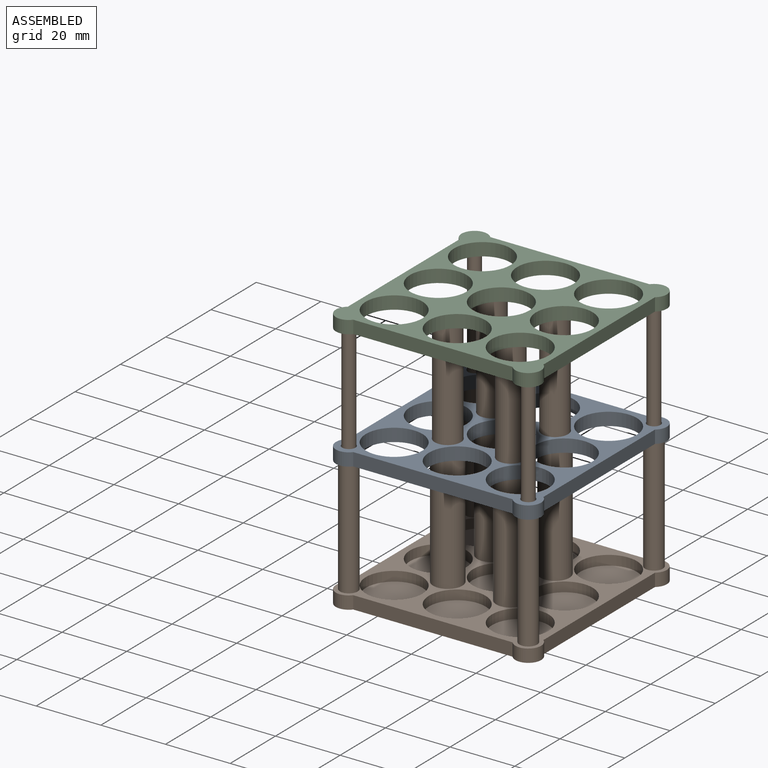
[diagram: assembled view]
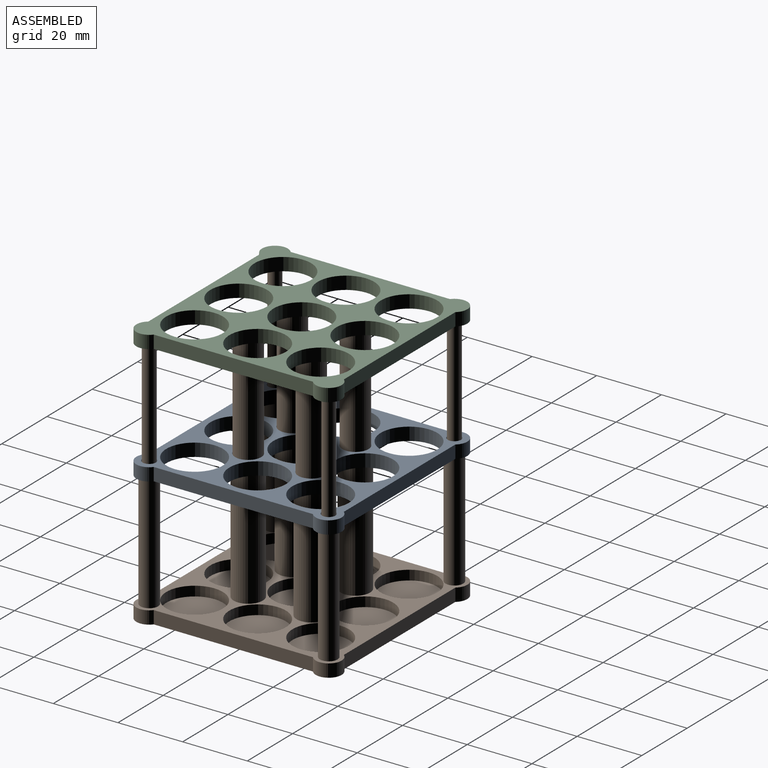
[diagram: assembled view, second angle]
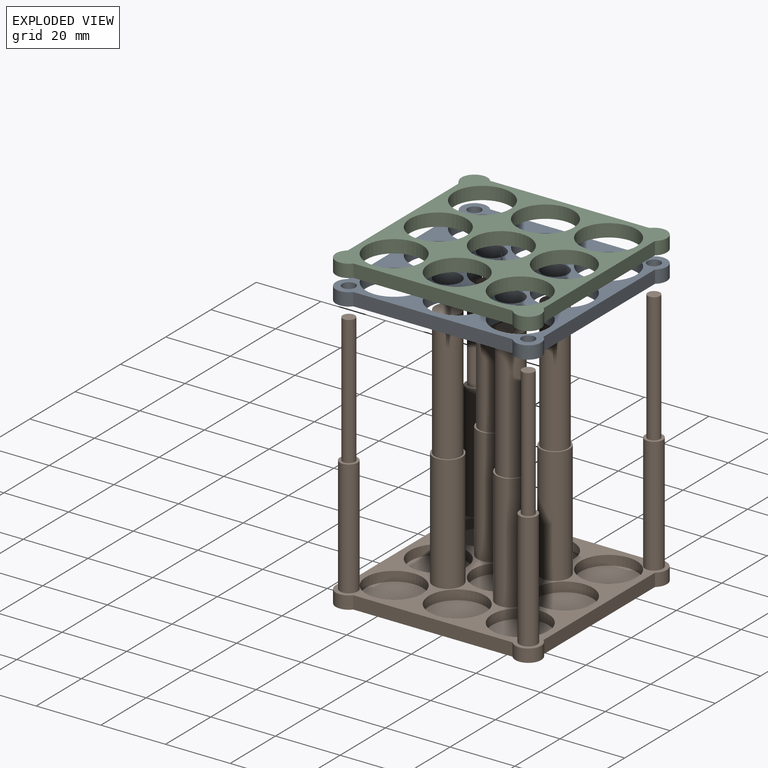
[diagram: exploded view]
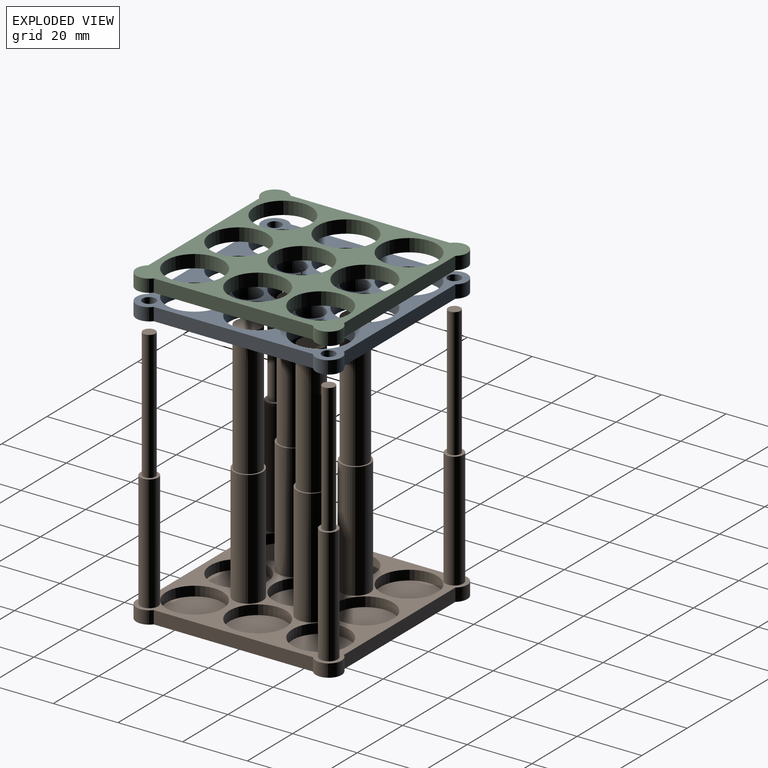
[diagram: exploded view, second angle]
ASSEMBLY  parts=3 mates=2
PART A: 27 faces, bbox 63.5x63.5x4 mm
  f0: plane 49.26x4mm, normal (0,1,0), area 197mm2, adj f1,f24,f25,f26
  f1: cylinder r=4mm len=7.12mm, axis (0,0,-1), area 53.8mm2, adj f0,f2,f25,f26
  f2: plane 49.26x4mm, normal (-1,0,0), area 197mm2, adj f1,f3,f25,f26
  f3: cylinder r=4mm len=7.12mm, axis (0,0,-1), area 53.8mm2, adj f2,f4,f25,f26
  f4: plane 49.26x4mm, normal (0,-1,0), area 197mm2, adj f3,f5,f25,f26
  f5: cylinder r=4mm len=7.12mm, axis (0,0,-1), area 53.8mm2, adj f4,f6,f25,f26
  f6: plane 49.26x4mm, normal (1,0,0), area 197mm2, adj f5,f24,f25,f26
  f7: cylinder r=8.75mm len=17.5mm, axis (0,0,-1), area 219.9mm2, adj f25,f26
  f8: cylinder r=8.75mm len=17.5mm, axis (0,0,-1), area 219.9mm2, adj f25,f26
  f9: cylinder r=8.75mm len=17.5mm, axis (0,0,-1), area 219.9mm2, adj f25,f26
  f10: cylinder r=8.75mm len=17.5mm, axis (0,0,-1), area 219.9mm2, adj f25,f26
  f11: cylinder r=8.75mm len=17.5mm, axis (0,0,-1), area 219.9mm2, adj f25,f26
  f12: cylinder r=8.75mm len=17.5mm, axis (0,0,-1), area 219.9mm2, adj f25,f26
  f13: cylinder r=8.75mm len=17.5mm, axis (0,0,-1), area 219.9mm2, adj f25,f26
  f14: cylinder r=8.75mm len=17.5mm, axis (0,0,-1), area 219.9mm2, adj f25,f26
  f15: cylinder r=8.75mm len=17.5mm, axis (0,0,-1), area 219.9mm2, adj f25,f26
  f16: cylinder r=2.05mm len=4.1mm, axis (0,0,-1), area 51.5mm2, adj f25,f26
  f17: cylinder r=2.05mm len=4.1mm, axis (0,0,-1), area 51.5mm2, adj f25,f26
  f18: cylinder r=2.05mm len=4.1mm, axis (0,0,-1), area 51.5mm2, adj f25,f26
  f19: cylinder r=4.05mm len=8.1mm, axis (0,0,-1), area 101.8mm2, adj f25,f26
  f20: cylinder r=4.05mm len=8.1mm, axis (0,0,-1), area 101.8mm2, adj f25,f26
  f21: cylinder r=4.05mm len=8.1mm, axis (0,0,-1), area 101.8mm2, adj f25,f26
  f22: cylinder r=4.05mm len=8.1mm, axis (0,0,-1), area 101.8mm2, adj f25,f26
  f23: cylinder r=2.05mm len=4.1mm, axis (0,0,-1), area 51.5mm2, adj f25,f26
  f24: cylinder r=4mm len=7.12mm, axis (0,0,-1), area 53.8mm2, adj f0,f6,f25,f26
  f25: plane 63.5x63.5mm, normal (0,0,1), area 1287.9mm2, adj f0,f1,f2,f3,f4,f5,f6,f7
  f26: plane 63.5x63.5mm, normal (0,0,-1), area 1287.9mm2, adj f0,f1,f2,f3,f4,f5,f6,f7
PART B: 60 faces, bbox 63.5x63.5x80 mm
  f0: plane 49.26x4mm, normal (0,1,0), area 197mm2, adj f1,f16,f17,f18
  f1: cylinder r=4mm len=7.12mm, axis (0,0,-1), area 53.8mm2, adj f0,f2,f17,f18
  f2: plane 49.26x4mm, normal (-1,0,0), area 197mm2, adj f1,f3,f17,f18
  f3: cylinder r=4mm len=7.12mm, axis (0,0,-1), area 53.8mm2, adj f2,f4,f17,f18
  f4: plane 49.26x4mm, normal (0,-1,0), area 197mm2, adj f3,f5,f17,f18
  f5: cylinder r=4mm len=7.12mm, axis (0,0,-1), area 53.8mm2, adj f4,f6,f17,f18
  f6: plane 49.26x4mm, normal (1,0,0), area 197mm2, adj f5,f16,f17,f18
  f7: cylinder r=8.75mm len=17.5mm, axis (0,0,-1), area 164.9mm2, adj f17,f59
  f8: cylinder r=8.75mm len=17.5mm, axis (0,0,-1), area 164.9mm2, adj f17,f58
  f9: cylinder r=8.75mm len=17.5mm, axis (0,0,-1), area 164.9mm2, adj f17,f57
  f10: cylinder r=8.75mm len=17.5mm, axis (0,0,-1), area 164.9mm2, adj f17,f56
  f11: cylinder r=8.75mm len=17.5mm, axis (0,0,-1), area 164.9mm2, adj f17,f55
  f12: cylinder r=8.75mm len=17.5mm, axis (0,0,-1), area 164.9mm2, adj f17,f54
  f13: cylinder r=8.75mm len=17.5mm, axis (0,0,-1), area 164.9mm2, adj f17,f53
  f14: cylinder r=8.75mm len=17.5mm, axis (0,0,-1), area 164.9mm2, adj f17,f52
  f15: cylinder r=8.75mm len=17.5mm, axis (0,0,-1), area 164.9mm2, adj f17,f51
  f16: cylinder r=4mm len=7.12mm, axis (0,0,-1), area 53.8mm2, adj f0,f6,f17,f18
  f17: plane 63.5x63.5mm, normal (0,0,1), area 1197.4mm2, adj f0,f1,f2,f3,f4,f5,f6,f7
  f18: plane 63.5x63.5mm, normal (0,0,-1), area 3711.6mm2, adj f0,f1,f2,f3,f4,f5,f6,f16
  f19: cylinder r=2.75mm len=36mm, axis (0,0,-1), area 622mm2, adj f17,f20
  f20: plane 5.5x5.5mm, normal (0,0,1), area 12.4mm2, adj f19,f36
  f21: cylinder r=2.75mm len=36mm, axis (0,0,-1), area 622mm2, adj f17,f22
  f22: plane 5.5x5.5mm, normal (0,0,1), area 12.4mm2, adj f21,f38
  f23: cylinder r=2.75mm len=36mm, axis (0,0,-1), area 622mm2, adj f17,f24
  f24: plane 5.5x5.5mm, normal (0,0,1), area 12.4mm2, adj f23,f40
  f25: cylinder r=2.75mm len=36mm, axis (0,0,-1), area 622mm2, adj f17,f26
  f26: plane 5.5x5.5mm, normal (0,0,1), area 12.4mm2, adj f25,f42
  f27: cylinder r=4.5mm len=36mm, axis (0,0,-1), area 1017.9mm2, adj f17,f28
  f28: plane 9x9mm, normal (0,0,1), area 13.4mm2, adj f27,f44
  f29: cylinder r=4.5mm len=36mm, axis (0,0,-1), area 1017.9mm2, adj f17,f30
  f30: plane 9x9mm, normal (0,0,1), area 13.4mm2, adj f29,f46
  f31: cylinder r=4.5mm len=36mm, axis (0,0,-1), area 1017.9mm2, adj f17,f32
  f32: plane 9x9mm, normal (0,0,1), area 13.4mm2, adj f31,f48
  f33: cylinder r=4.5mm len=36mm, axis (0,0,-1), area 1017.9mm2, adj f17,f34
  f34: plane 9x9mm, normal (0,0,1), area 13.4mm2, adj f33,f50
  f35: plane 3.8x3.8mm, normal (0,0,1), area 11.3mm2, adj f36
  f36: cylinder r=1.9mm len=40mm, axis (0,0,-1), area 477.5mm2, adj f20,f35
  f37: plane 3.8x3.8mm, normal (0,0,1), area 11.3mm2, adj f38
  f38: cylinder r=1.9mm len=40mm, axis (0,0,-1), area 477.5mm2, adj f22,f37
  f39: plane 3.8x3.8mm, normal (0,0,1), area 11.3mm2, adj f40
  f40: cylinder r=1.9mm len=40mm, axis (0,0,-1), area 477.5mm2, adj f24,f39
  f41: plane 3.8x3.8mm, normal (0,0,1), area 11.3mm2, adj f42
  f42: cylinder r=1.9mm len=40mm, axis (0,0,-1), area 477.5mm2, adj f26,f41
  f43: plane 8x8mm, normal (0,0,1), area 50.3mm2, adj f44
  f44: cylinder r=4mm len=40mm, axis (0,0,-1), area 1005.3mm2, adj f28,f43
  f45: plane 8x8mm, normal (0,0,1), area 50.3mm2, adj f46
  f46: cylinder r=4mm len=40mm, axis (0,0,-1), area 1005.3mm2, adj f30,f45
  f47: plane 8x8mm, normal (0,0,1), area 50.3mm2, adj f48
  f48: cylinder r=4mm len=40mm, axis (0,0,-1), area 1005.3mm2, adj f32,f47
  f49: plane 8x8mm, normal (0,0,1), area 50.3mm2, adj f50
  f50: cylinder r=4mm len=40mm, axis (0,0,-1), area 1005.3mm2, adj f34,f49
  f51: plane 17.5x17.5mm, normal (0,0,1), area 240.5mm2, adj f15
  f52: plane 17.5x17.5mm, normal (0,0,1), area 240.5mm2, adj f14
  f53: plane 17.5x17.5mm, normal (0,0,1), area 240.5mm2, adj f13
  f54: plane 17.5x17.5mm, normal (0,0,1), area 240.5mm2, adj f12
  f55: plane 17.5x17.5mm, normal (0,0,1), area 240.5mm2, adj f11
  f56: plane 17.5x17.5mm, normal (0,0,1), area 240.5mm2, adj f10
  f57: plane 17.5x17.5mm, normal (0,0,1), area 240.5mm2, adj f9
  f58: plane 17.5x17.5mm, normal (0,0,1), area 240.5mm2, adj f8
  f59: plane 17.5x17.5mm, normal (0,0,1), area 240.5mm2, adj f7
PART C: 35 faces, bbox 63.5x63.5x4 mm
  f0: plane 63.5x63.5mm, normal (0,0,-1), area 1287.9mm2, adj f1,f2,f3,f4,f5,f6,f7,f8
  f1: cylinder r=4mm len=7.12mm, axis (0,0,-1), area 53.8mm2, adj f0,f2,f16,f18
  f2: plane 49.26x4mm, normal (-1,0,0), area 197mm2, adj f0,f1,f3,f18
  f3: cylinder r=4mm len=7.12mm, axis (0,0,-1), area 53.8mm2, adj f0,f2,f4,f18
  f4: plane 49.26x4mm, normal (0,-1,0), area 197mm2, adj f0,f3,f5,f18
  f5: cylinder r=4mm len=7.12mm, axis (0,0,-1), area 53.8mm2, adj f0,f4,f6,f18
  f6: plane 49.26x4mm, normal (1,0,0), area 197mm2, adj f0,f5,f7,f18
  f7: cylinder r=4mm len=7.12mm, axis (0,0,-1), area 53.8mm2, adj f0,f6,f16,f18
  f8: cylinder r=8.75mm len=17.5mm, axis (0,0,-1), area 219.9mm2, adj f0,f18
  f9: cylinder r=8.75mm len=17.5mm, axis (0,0,-1), area 219.9mm2, adj f0,f18
  f10: cylinder r=8.75mm len=17.5mm, axis (0,0,-1), area 219.9mm2, adj f0,f18
  f11: cylinder r=8.75mm len=17.5mm, axis (0,0,-1), area 219.9mm2, adj f0,f18
  f12: cylinder r=8.75mm len=17.5mm, axis (0,0,-1), area 219.9mm2, adj f0,f18
  f13: cylinder r=8.75mm len=17.5mm, axis (0,0,-1), area 219.9mm2, adj f0,f18
  f14: cylinder r=8.75mm len=17.5mm, axis (0,0,-1), area 219.9mm2, adj f0,f18
  f15: cylinder r=8.75mm len=17.5mm, axis (0,0,-1), area 219.9mm2, adj f0,f18
  f16: plane 49.26x4mm, normal (0,1,0), area 197mm2, adj f0,f1,f7,f18
  f17: cylinder r=8.75mm len=17.5mm, axis (0,0,-1), area 219.9mm2, adj f0,f18
  f18: plane 63.5x63.5mm, normal (0,0,1), area 1546.9mm2, adj f1,f2,f3,f4,f5,f6,f7,f8
  f19: cylinder r=2.05mm len=4.1mm, axis (0,0,-1), area 38.6mm2, adj f0,f20
  f20: plane 4.1x4.1mm, normal (0,0,-1), area 13.2mm2, adj f19
  f21: cylinder r=4.05mm len=8.1mm, axis (0,0,-1), area 76.3mm2, adj f0,f22
  f22: plane 8.1x8.1mm, normal (0,0,-1), area 51.5mm2, adj f21
  f23: cylinder r=4.05mm len=8.1mm, axis (0,0,-1), area 76.3mm2, adj f0,f24
  f24: plane 8.1x8.1mm, normal (0,0,-1), area 51.5mm2, adj f23
  f25: cylinder r=4.05mm len=8.1mm, axis (0,0,-1), area 76.3mm2, adj f0,f26
  f26: plane 8.1x8.1mm, normal (0,0,-1), area 51.5mm2, adj f25
  f27: cylinder r=4.05mm len=8.1mm, axis (0,0,-1), area 76.3mm2, adj f0,f28
  f28: plane 8.1x8.1mm, normal (0,0,-1), area 51.5mm2, adj f27
  f29: cylinder r=2.05mm len=4.1mm, axis (0,0,-1), area 38.6mm2, adj f0,f30
  f30: plane 4.1x4.1mm, normal (0,0,-1), area 13.2mm2, adj f29
  f31: cylinder r=2.05mm len=4.1mm, axis (0,0,-1), area 38.6mm2, adj f0,f32
  f32: plane 4.1x4.1mm, normal (0,0,-1), area 13.2mm2, adj f31
  f33: cylinder r=2.05mm len=4.1mm, axis (0,0,-1), area 38.6mm2, adj f0,f34
  f34: plane 4.1x4.1mm, normal (0,0,-1), area 13.2mm2, adj f33
PLACE A t=(34.61,-33.59,40)mm
PLACE B at identity
PLACE C t=(40.03,-40.1,77)mm
MATE fastened A.f3 <-> B.f3  axis (0,0,-1) through (-8.25,-47.25,40)mm
MATE fastened C.f5 <-> B.f5  axis (0,0,-1) through (47.25,-47.25,80)mm
